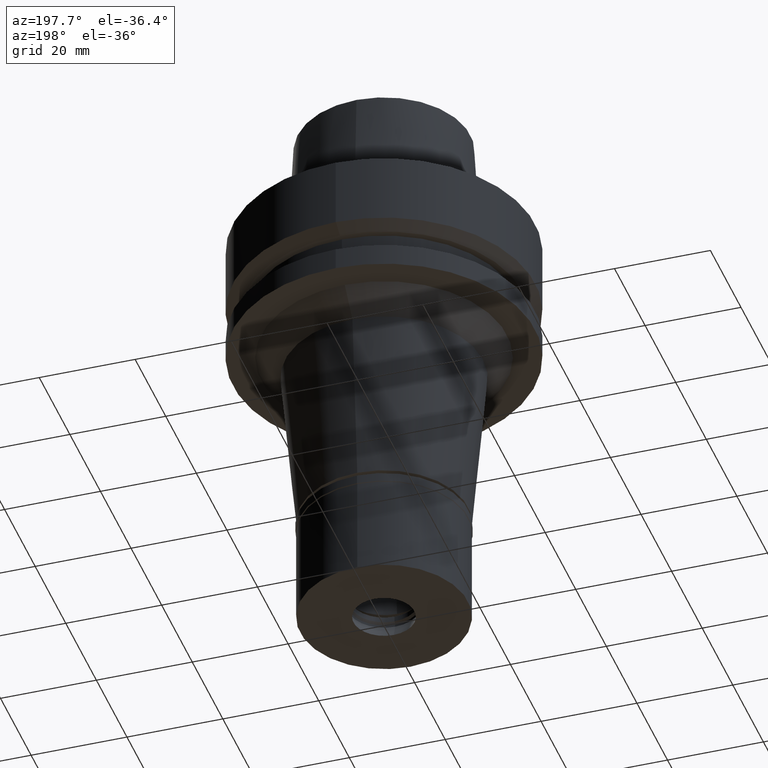
[diagram: clean part render]
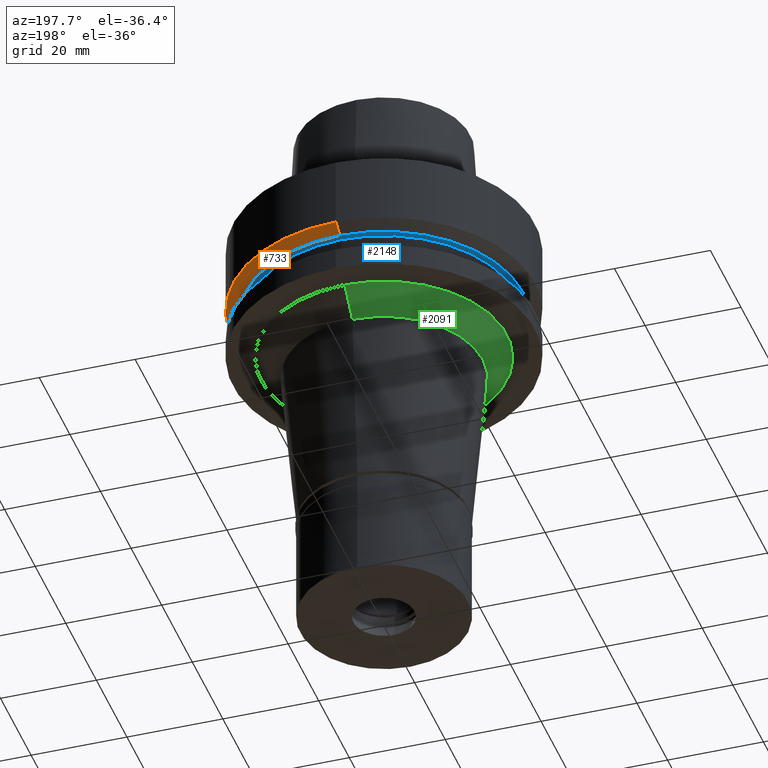
[diagram: same view with three faces highlighted in distinct colors, each labeled with its STEP entity id]
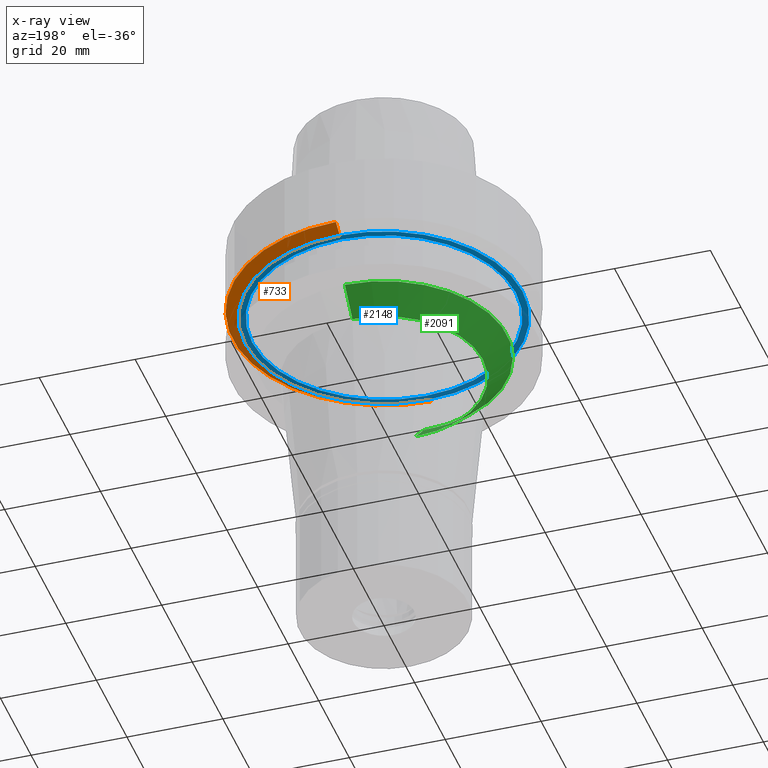
[diagram: x-ray of the same camera — body ghosted, the three highlighted faces saturated]
A machine part, auxiliary view with three faces highlighted in distinct colors.
The next image is the same camera in x-ray (body ghosted, the three faces saturated) — at least one of them is partly hidden behind the body in this view.
Their STEP definitions:

[orange] entity #733 — the highlighted conical surface has half-angle 60 deg.
#41 = ORIENTED_EDGE ( 'NONE', *, *, #2449, .T. ) ;
#70 = EDGE_LOOP ( 'NONE', ( #770, #41, #2045, #2573 ) ) ;
#434 = CARTESIAN_POINT ( 'NONE',  ( 0.0000000000000000000, 0.0000000000000000000, -15.37375046262000033 ) ) ;
#441 = AXIS2_PLACEMENT_3D ( 'NONE', #434, #2859, #644 ) ;
#598 = AXIS2_PLACEMENT_3D ( 'NONE', #1206, #2086, #1177 ) ;
#644 = DIRECTION ( 'NONE',  ( 0.0000000000000000000, 1.000000000000000000, 0.0000000000000000000 ) ) ;
#701 = CARTESIAN_POINT ( 'NONE',  ( 0.0000000000000000000, -28.89759526419000224, -16.12500000000000000 ) ) ;
#718 = LINE ( 'NONE', #1419, #1326 ) ;
#733 = ADVANCED_FACE ( 'NONE', ( #2659 ), #1514, .T. ) ;
#770 = ORIENTED_EDGE ( 'NONE', *, *, #1435, .F. ) ;
#898 = VERTEX_POINT ( 'NONE', #1141 ) ;
#1003 = CARTESIAN_POINT ( 'NONE',  ( 0.0000000000000000000, 0.0000000000000000000, -16.12500000000000000 ) ) ;
#1076 = CIRCLE ( 'NONE', #1319, 28.89759526419000224 ) ;
#1140 = EDGE_CURVE ( 'NONE', #898, #2125, #1280, .T. ) ;
#1141 = CARTESIAN_POINT ( 'NONE',  ( 0.0000000000000000000, 31.50000000000000000, -14.62250092523999889 ) ) ;
#1177 = DIRECTION ( 'NONE',  ( 0.0000000000000000000, -1.000000000000000000, 0.0000000000000000000 ) ) ;
#1206 = CARTESIAN_POINT ( 'NONE',  ( 0.0000000000000000000, 0.0000000000000000000, -14.62250092523999889 ) ) ;
#1280 = LINE ( 'NONE', #2855, #1720 ) ;
#1319 = AXIS2_PLACEMENT_3D ( 'NONE', #1003, #2785, #1487 ) ;
#1326 = VECTOR ( 'NONE', #1612, 1000.000000000000000 ) ;
#1419 = CARTESIAN_POINT ( 'NONE',  ( 0.0000000000000000000, -31.50000000000000000, -14.62250092523999889 ) ) ;
#1435 = EDGE_CURVE ( 'NONE', #1439, #898, #1853, .T. ) ;
#1439 = VERTEX_POINT ( 'NONE', #2694 ) ;
#1487 = DIRECTION ( 'NONE',  ( 0.0000000000000000000, -1.000000000000000000, 0.0000000000000000000 ) ) ;
#1514 = CONICAL_SURFACE ( 'NONE', #441, 30.19879763209999979, 1.047197551196400456 ) ;
#1607 = EDGE_CURVE ( 'NONE', #2510, #2125, #1076, .T. ) ;
#1609 = CARTESIAN_POINT ( 'NONE',  ( 0.0000000000000000000, 28.89759526419000224, -16.12500000000000000 ) ) ;
#1612 = DIRECTION ( 'NONE',  ( 0.0000000000000000000, 0.8660254037843856390, -0.5000000000000918154 ) ) ;
#1720 = VECTOR ( 'NONE', #2149, 1000.000000000000000 ) ;
#1853 = CIRCLE ( 'NONE', #598, 31.50000000000000000 ) ;
#2045 = ORIENTED_EDGE ( 'NONE', *, *, #1607, .T. ) ;
#2086 = DIRECTION ( 'NONE',  ( 0.0000000000000000000, 0.0000000000000000000, 1.000000000000000000 ) ) ;
#2125 = VERTEX_POINT ( 'NONE', #1609 ) ;
#2149 = DIRECTION ( 'NONE',  ( 0.0000000000000000000, -0.8660254037843856390, -0.5000000000000918154 ) ) ;
#2449 = EDGE_CURVE ( 'NONE', #1439, #2510, #718, .T. ) ;
#2510 = VERTEX_POINT ( 'NONE', #701 ) ;
#2573 = ORIENTED_EDGE ( 'NONE', *, *, #1140, .F. ) ;
#2659 = FACE_OUTER_BOUND ( 'NONE', #70, .T. ) ;
#2694 = CARTESIAN_POINT ( 'NONE',  ( 0.0000000000000000000, -31.50000000000000000, -14.62250092523999889 ) ) ;
#2785 = DIRECTION ( 'NONE',  ( 0.0000000000000000000, 0.0000000000000000000, 1.000000000000000000 ) ) ;
#2855 = CARTESIAN_POINT ( 'NONE',  ( 0.0000000000000000000, 31.50000000000000000, -14.62250092523999889 ) ) ;
#2859 = DIRECTION ( 'NONE',  ( 0.0000000000000000000, 0.0000000000000000000, 1.000000000000000000 ) ) ;

[blue] entity #2148 — the highlighted planar face has unit normal (0, 0, 1).
#36 = CARTESIAN_POINT ( 'NONE',  ( 0.0000000000000000000, 27.50000000000000000, -16.12500000000000000 ) ) ;
#46 = ORIENTED_EDGE ( 'NONE', *, *, #2484, .F. ) ;
#124 = VERTEX_POINT ( 'NONE', #407 ) ;
#154 = AXIS2_PLACEMENT_3D ( 'NONE', #1520, #2338, #2580 ) ;
#240 = AXIS2_PLACEMENT_3D ( 'NONE', #823, #2611, #1499 ) ;
#335 = EDGE_LOOP ( 'NONE', ( #46, #1191 ) ) ;
#391 = DIRECTION ( 'NONE',  ( 0.0000000000000000000, 0.0000000000000000000, -1.000000000000000000 ) ) ;
#407 = CARTESIAN_POINT ( 'NONE',  ( 0.0000000000000000000, -27.50000000000000000, -16.12500000000000000 ) ) ;
#495 = EDGE_CURVE ( 'NONE', #124, #1951, #2618, .T. ) ;
#501 = FACE_BOUND ( 'NONE', #1616, .T. ) ;
#701 = CARTESIAN_POINT ( 'NONE',  ( 0.0000000000000000000, -28.89759526419000224, -16.12500000000000000 ) ) ;
#823 = CARTESIAN_POINT ( 'NONE',  ( 0.0000000000000000000, 0.0000000000000000000, -16.12500000000000000 ) ) ;
#849 = AXIS2_PLACEMENT_3D ( 'NONE', #2068, #1205, #1874 ) ;
#939 = AXIS2_PLACEMENT_3D ( 'NONE', #1709, #391, #1882 ) ;
#1003 = CARTESIAN_POINT ( 'NONE',  ( 0.0000000000000000000, 0.0000000000000000000, -16.12500000000000000 ) ) ;
#1076 = CIRCLE ( 'NONE', #1319, 28.89759526419000224 ) ;
#1191 = ORIENTED_EDGE ( 'NONE', *, *, #1607, .F. ) ;
#1205 = DIRECTION ( 'NONE',  ( 0.0000000000000000000, 0.0000000000000000000, 1.000000000000000000 ) ) ;
#1319 = AXIS2_PLACEMENT_3D ( 'NONE', #1003, #2785, #1487 ) ;
#1394 = PLANE ( 'NONE',  #240 ) ;
#1438 = ORIENTED_EDGE ( 'NONE', *, *, #2695, .F. ) ;
#1487 = DIRECTION ( 'NONE',  ( 0.0000000000000000000, -1.000000000000000000, 0.0000000000000000000 ) ) ;
#1499 = DIRECTION ( 'NONE',  ( 1.000000000000000000, 0.0000000000000000000, 0.0000000000000000000 ) ) ;
#1520 = CARTESIAN_POINT ( 'NONE',  ( 0.0000000000000000000, 0.0000000000000000000, -16.12500000000000000 ) ) ;
#1588 = CIRCLE ( 'NONE', #154, 27.50000000000000000 ) ;
#1607 = EDGE_CURVE ( 'NONE', #2510, #2125, #1076, .T. ) ;
#1609 = CARTESIAN_POINT ( 'NONE',  ( 0.0000000000000000000, 28.89759526419000224, -16.12500000000000000 ) ) ;
#1616 = EDGE_LOOP ( 'NONE', ( #1438, #2283 ) ) ;
#1709 = CARTESIAN_POINT ( 'NONE',  ( 0.0000000000000000000, 0.0000000000000000000, -16.12500000000000000 ) ) ;
#1874 = DIRECTION ( 'NONE',  ( 0.0000000000000000000, 1.000000000000000000, 0.0000000000000000000 ) ) ;
#1882 = DIRECTION ( 'NONE',  ( 0.0000000000000000000, -1.000000000000000000, 0.0000000000000000000 ) ) ;
#1951 = VERTEX_POINT ( 'NONE', #36 ) ;
#2068 = CARTESIAN_POINT ( 'NONE',  ( 0.0000000000000000000, 0.0000000000000000000, -16.12500000000000000 ) ) ;
#2125 = VERTEX_POINT ( 'NONE', #1609 ) ;
#2148 = ADVANCED_FACE ( 'NONE', ( #2488, #501 ), #1394, .F. ) ;
#2281 = CIRCLE ( 'NONE', #849, 28.89759526419000224 ) ;
#2283 = ORIENTED_EDGE ( 'NONE', *, *, #495, .F. ) ;
#2338 = DIRECTION ( 'NONE',  ( 0.0000000000000000000, 0.0000000000000000000, -1.000000000000000000 ) ) ;
#2484 = EDGE_CURVE ( 'NONE', #2125, #2510, #2281, .T. ) ;
#2488 = FACE_OUTER_BOUND ( 'NONE', #335, .T. ) ;
#2510 = VERTEX_POINT ( 'NONE', #701 ) ;
#2580 = DIRECTION ( 'NONE',  ( 0.0000000000000000000, 1.000000000000000000, 0.0000000000000000000 ) ) ;
#2611 = DIRECTION ( 'NONE',  ( 0.0000000000000000000, 0.0000000000000000000, 1.000000000000000000 ) ) ;
#2618 = CIRCLE ( 'NONE', #939, 27.50000000000000000 ) ;
#2695 = EDGE_CURVE ( 'NONE', #1951, #124, #1588, .T. ) ;
#2785 = DIRECTION ( 'NONE',  ( 0.0000000000000000000, 0.0000000000000000000, 1.000000000000000000 ) ) ;

[green] entity #2091 — the highlighted conical surface has half-angle 45 deg.
#133 = DIRECTION ( 'NONE',  ( 0.0000000000000000000, 0.0000000000000000000, -1.000000000000000000 ) ) ;
#145 = CARTESIAN_POINT ( 'NONE',  ( 0.0000000000000000000, 0.0000000000000000000, -31.00000000000000000 ) ) ;
#155 = EDGE_CURVE ( 'NONE', #1194, #1461, #1129, .T. ) ;
#162 = ORIENTED_EDGE ( 'NONE', *, *, #1637, .T. ) ;
#362 = CARTESIAN_POINT ( 'NONE',  ( 0.0000000000000000000, 25.62334528787999943, -26.00000000000000000 ) ) ;
#528 = VERTEX_POINT ( 'NONE', #1237 ) ;
#563 = CARTESIAN_POINT ( 'NONE',  ( 0.0000000000000000000, 0.0000000000000000000, -26.00000000000000000 ) ) ;
#812 = ORIENTED_EDGE ( 'NONE', *, *, #1598, .F. ) ;
#1050 = ORIENTED_EDGE ( 'NONE', *, *, #2443, .T. ) ;
#1129 = LINE ( 'NONE', #2426, #2194 ) ;
#1158 = CARTESIAN_POINT ( 'NONE',  ( 0.0000000000000000000, 25.62334528787999943, -26.00000000000000000 ) ) ;
#1176 = LINE ( 'NONE', #1158, #2602 ) ;
#1194 = VERTEX_POINT ( 'NONE', #1792 ) ;
#1237 = CARTESIAN_POINT ( 'NONE',  ( 0.0000000000000000000, 20.62334528787999943, -31.00000000000000000 ) ) ;
#1343 = ORIENTED_EDGE ( 'NONE', *, *, #155, .F. ) ;
#1461 = VERTEX_POINT ( 'NONE', #2527 ) ;
#1522 = DIRECTION ( 'NONE',  ( 0.0000000000000000000, -1.000000000000000000, 0.0000000000000000000 ) ) ;
#1598 = EDGE_CURVE ( 'NONE', #1461, #528, #2133, .T. ) ;
#1631 = AXIS2_PLACEMENT_3D ( 'NONE', #563, #2569, #2615 ) ;
#1637 = EDGE_CURVE ( 'NONE', #1194, #2777, #2372, .T. ) ;
#1721 = AXIS2_PLACEMENT_3D ( 'NONE', #145, #133, #1522 ) ;
#1750 = DIRECTION ( 'NONE',  ( 0.0000000000000000000, 0.7071067811865969777, -0.7071067811864980568 ) ) ;
#1792 = CARTESIAN_POINT ( 'NONE',  ( 0.0000000000000000000, -25.62334528787999943, -26.00000000000000000 ) ) ;
#2016 = CARTESIAN_POINT ( 'NONE',  ( 0.0000000000000000000, 0.0000000000000000000, -28.50000000000000000 ) ) ;
#2091 = ADVANCED_FACE ( 'NONE', ( #2307 ), #2272, .T. ) ;
#2133 = CIRCLE ( 'NONE', #1721, 20.62334528787999943 ) ;
#2194 = VECTOR ( 'NONE', #1750, 1000.000000000000000 ) ;
#2214 = EDGE_LOOP ( 'NONE', ( #812, #1343, #162, #1050 ) ) ;
#2272 = CONICAL_SURFACE ( 'NONE', #2600, 23.12334528787999588, 0.7853981633972997312 ) ;
#2307 = FACE_OUTER_BOUND ( 'NONE', #2214, .T. ) ;
#2372 = CIRCLE ( 'NONE', #1631, 25.62334528787999943 ) ;
#2426 = CARTESIAN_POINT ( 'NONE',  ( 0.0000000000000000000, -25.62334528787999943, -26.00000000000000000 ) ) ;
#2443 = EDGE_CURVE ( 'NONE', #2777, #528, #1176, .T. ) ;
#2526 = DIRECTION ( 'NONE',  ( 0.0000000000000000000, -0.7071067811865969777, -0.7071067811864980568 ) ) ;
#2527 = CARTESIAN_POINT ( 'NONE',  ( 0.0000000000000000000, -20.62334528787999943, -31.00000000000000000 ) ) ;
#2569 = DIRECTION ( 'NONE',  ( 0.0000000000000000000, 0.0000000000000000000, -1.000000000000000000 ) ) ;
#2600 = AXIS2_PLACEMENT_3D ( 'NONE', #2016, #2756, #2736 ) ;
#2602 = VECTOR ( 'NONE', #2526, 1000.000000000000000 ) ;
#2615 = DIRECTION ( 'NONE',  ( 0.0000000000000000000, -1.000000000000000000, 0.0000000000000000000 ) ) ;
#2736 = DIRECTION ( 'NONE',  ( 0.0000000000000000000, 1.000000000000000000, 0.0000000000000000000 ) ) ;
#2756 = DIRECTION ( 'NONE',  ( 0.0000000000000000000, 0.0000000000000000000, 1.000000000000000000 ) ) ;
#2777 = VERTEX_POINT ( 'NONE', #362 ) ;